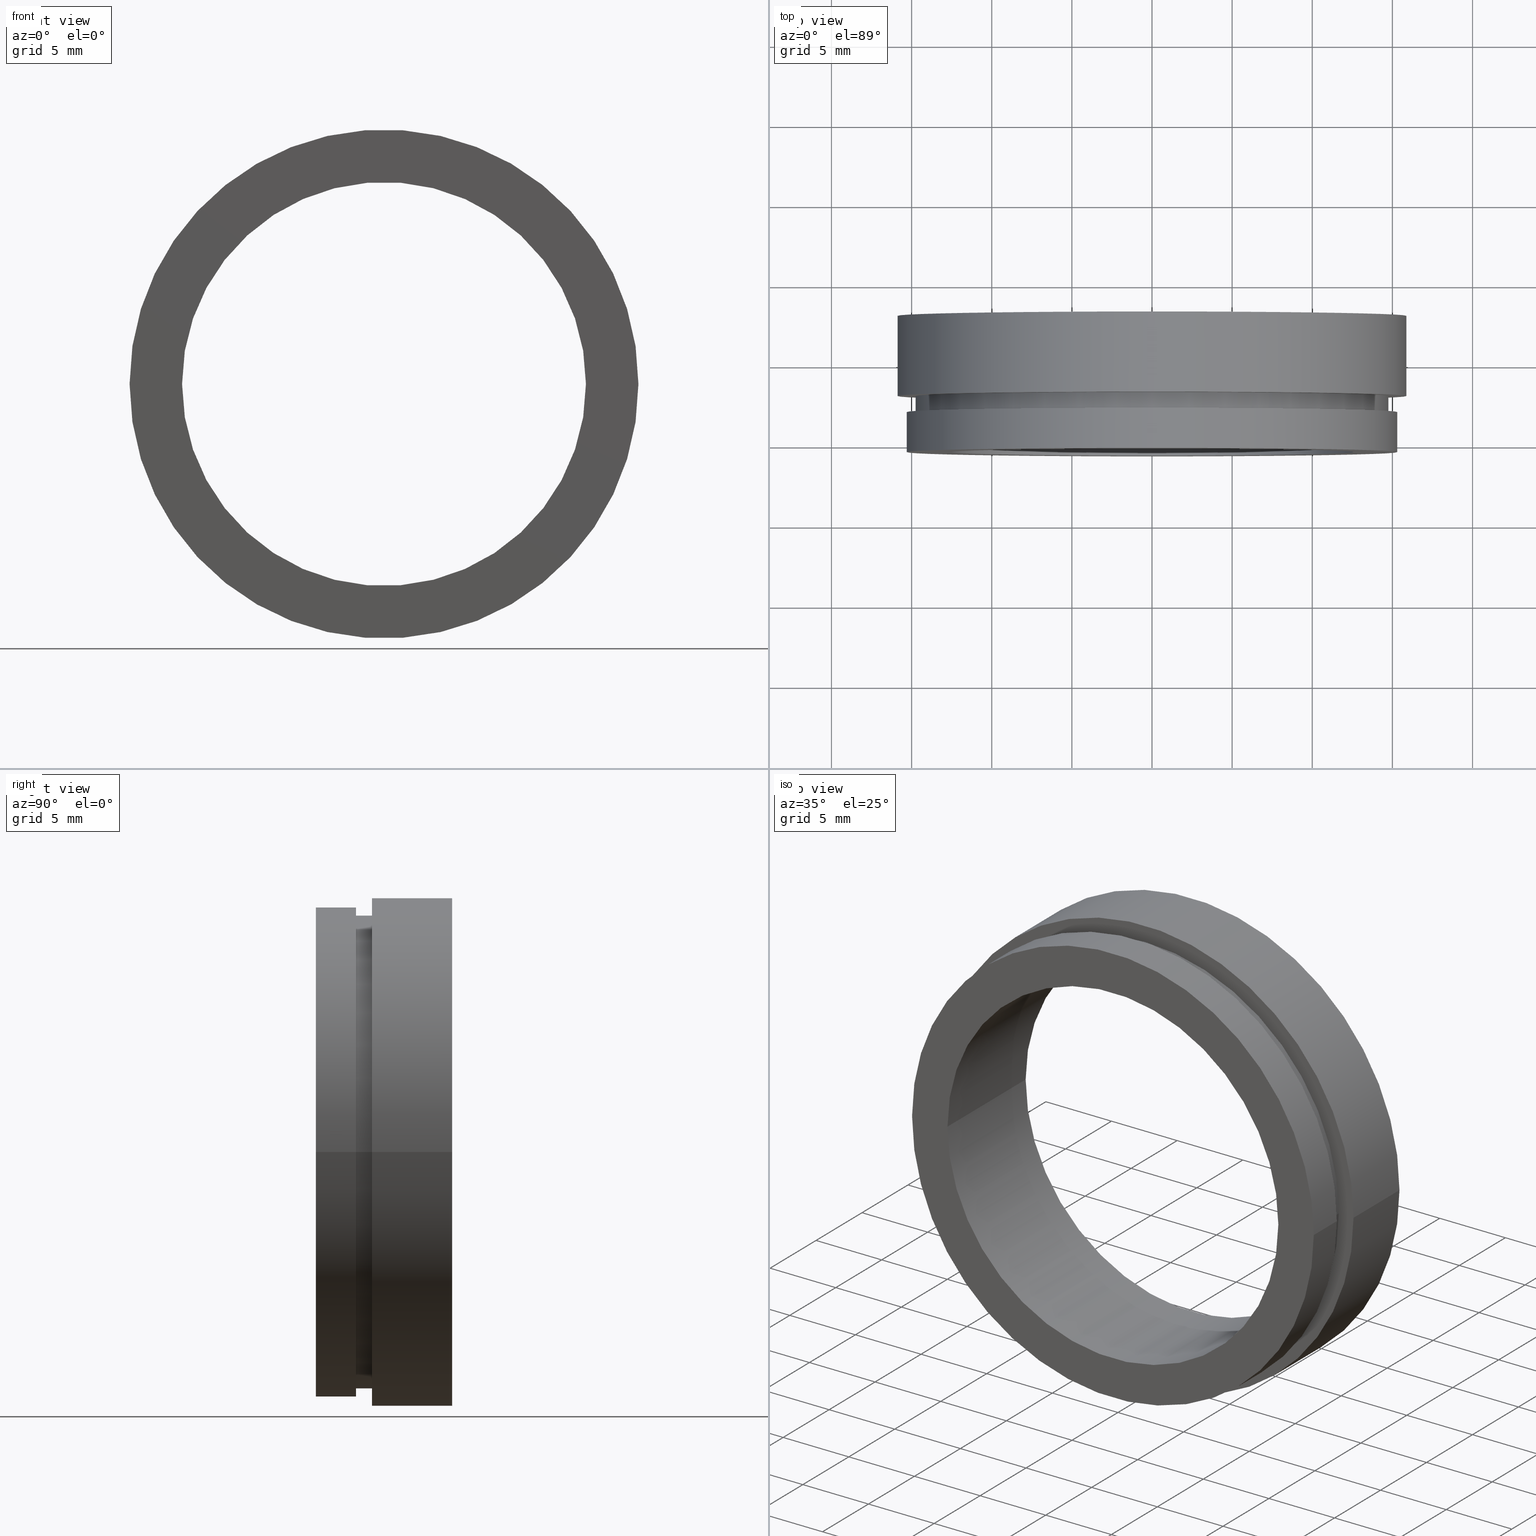
[diagram: canonical four-view strip — front | top / right | iso, engineering-drawing reading convention]
A machine part, canonical four-view strip (front | top / right | iso — engineering-drawing reading convention). The complete STEP part file that produces these views, byte-faithful:
ISO-10303-21;
HEADER;
FILE_DESCRIPTION (( 'STEP AP214' ),
    '1' );
FILE_NAME ('504104.STEP',
    '2019-10-09T01:54:45',
    ( '' ),
    ( '' ),
    'SwSTEP 2.0',
    'SolidWorks 2016',
    '' );
FILE_SCHEMA (( 'AUTOMOTIVE_DESIGN' ));
ENDSEC;

DATA;
#1 = DIRECTION ( 'NONE',  ( -1.000000000000000000, -1.092739197465705300E-016, 0.0000000000000000000 ) ) ;
#2 = CYLINDRICAL_SURFACE ( 'NONE', #11, 14.74999999999999800 ) ;
#3 = PRESENTATION_STYLE_ASSIGNMENT (( #337 ) ) ;
#4 = ORIENTED_EDGE ( 'NONE', *, *, #252, .F. ) ;
#5 = ADVANCED_BREP_SHAPE_REPRESENTATION ( '504104', ( #106, #32 ), #80 ) ;
#6 = DIRECTION ( 'NONE',  ( -1.224646799147351000E-016, 1.000000000000000000, -0.0000000000000000000 ) ) ;
#7 = CARTESIAN_POINT ( 'NONE',  ( -14.74999999999999800, 16.88601823708207300, 0.0000000000000000000 ) ) ;
#8 =( GEOMETRIC_REPRESENTATION_CONTEXT ( 3 ) GLOBAL_UNCERTAINTY_ASSIGNED_CONTEXT ( ( #52 ) ) GLOBAL_UNIT_ASSIGNED_CONTEXT ( ( #181, #10, #300 ) ) REPRESENTATION_CONTEXT ( 'NONE', 'WORKASPACE' ) );
#9 = DIRECTION ( 'NONE',  ( -1.224646799147351000E-016, 1.000000000000000000, -0.0000000000000000000 ) ) ;
#10 =( NAMED_UNIT ( * ) PLANE_ANGLE_UNIT ( ) SI_UNIT ( $, .RADIAN. ) );
#11 = AXIS2_PLACEMENT_3D ( 'NONE', #258, #124, #223 ) ;
#12 = DIRECTION ( 'NONE',  ( -1.224646799147351000E-016, 1.000000000000000000, -0.0000000000000000000 ) ) ;
#13 = DIRECTION ( 'NONE',  ( -1.000000000000000000, 0.0000000000000000000, 0.0000000000000000000 ) ) ;
#14 = FILL_AREA_STYLE_COLOUR ( '', #220 ) ;
#15 = ORIENTED_EDGE ( 'NONE', *, *, #293, .T. ) ;
#16 = COLOUR_RGB ( '',1.000000000000000000, 1.000000000000000000, 1.000000000000000000 ) ;
#17 =( NAMED_UNIT ( * ) SI_UNIT ( $, .STERADIAN. ) SOLID_ANGLE_UNIT ( ) );
#18 = DIRECTION ( 'NONE',  ( -1.000000000000000000, -1.204669080539449300E-016, 0.0000000000000000000 ) ) ;
#19 = EDGE_CURVE ( 'NONE', #242, #161, #249, .T. ) ;
#20 = DIRECTION ( 'NONE',  ( -1.224646799147351000E-016, 1.000000000000000000, -0.0000000000000000000 ) ) ;
#21 = DIRECTION ( 'NONE',  ( -1.000000000000000000, -1.224646799147351000E-016, 0.0000000000000000000 ) ) ;
#22 =( NAMED_UNIT ( * ) PLANE_ANGLE_UNIT ( ) SI_UNIT ( $, .RADIAN. ) );
#23 = CARTESIAN_POINT ( 'NONE',  ( 1.093791163676037000E-015, 7.954535588880333700, 0.0000000000000000000 ) ) ;
#24 = ORIENTED_EDGE ( 'NONE', *, *, #118, .F. ) ;
#25 = AXIS2_PLACEMENT_3D ( 'NONE', #39, #271, #67 ) ;
#26 = CIRCLE ( 'NONE', #211, 14.74999999999999800 ) ;
#27 = FACE_OUTER_BOUND ( 'NONE', #364, .T. ) ;
#28 = AXIS2_PLACEMENT_3D ( 'NONE', #64, #294, #1 ) ;
#29 = UNCERTAINTY_MEASURE_WITH_UNIT (LENGTH_MEASURE( 1.000000000000000100E-005 ), #218, 'distance_accuracy_value', 'NONE');
#30 = SURFACE_STYLE_FILL_AREA ( #75 ) ;
#31 = ORIENTED_EDGE ( 'NONE', *, *, #134, .F. ) ;
#32 = AXIS2_PLACEMENT_3D ( 'NONE', #374, #164, #308 ) ;
#33 = UNCERTAINTY_MEASURE_WITH_UNIT (LENGTH_MEASURE( 1.000000000000000100E-005 ), #43, 'distance_accuracy_value', 'NONE');
#34 =( GEOMETRIC_REPRESENTATION_CONTEXT ( 3 ) GLOBAL_UNCERTAINTY_ASSIGNED_CONTEXT ( ( #205 ) ) GLOBAL_UNIT_ASSIGNED_CONTEXT ( ( #121, #253, #351 ) ) REPRESENTATION_CONTEXT ( 'NONE', 'WORKASPACE' ) );
#35 = CARTESIAN_POINT ( 'NONE',  ( -14.74999999999999600, 2.954535588880331100, 0.0000000000000000000 ) ) ;
#36 = ORIENTED_EDGE ( 'NONE', *, *, #90, .T. ) ;
#37 = CARTESIAN_POINT ( 'NONE',  ( 15.87500000000000000, 7.954535588880335500, 1.944126793646423200E-015 ) ) ;
#38 = DIRECTION ( 'NONE',  ( -1.224646799147351000E-016, 1.000000000000000000, -0.0000000000000000000 ) ) ;
#39 = CARTESIAN_POINT ( 'NONE',  ( 1.828579243164447600E-015, 1.954535588880333700, 0.0000000000000000000 ) ) ;
#40 = LINE ( 'NONE', #310, #101 ) ;
#41 = AXIS2_PLACEMENT_3D ( 'NONE', #377, #83, #417 ) ;
#42 =( LENGTH_UNIT ( ) NAMED_UNIT ( * ) SI_UNIT ( .MILLI., .METRE. ) );
#43 =( LENGTH_UNIT ( ) NAMED_UNIT ( * ) SI_UNIT ( .MILLI., .METRE. ) );
#44 = FILL_AREA_STYLE_COLOUR ( '', #16 ) ;
#45 = LINE ( 'NONE', #110, #390 ) ;
#46 = ORIENTED_EDGE ( 'NONE', *, *, #118, .T. ) ;
#47 =( GEOMETRIC_REPRESENTATION_CONTEXT ( 3 ) GLOBAL_UNCERTAINTY_ASSIGNED_CONTEXT ( ( #233 ) ) GLOBAL_UNIT_ASSIGNED_CONTEXT ( ( #276, #312, #414 ) ) REPRESENTATION_CONTEXT ( 'NONE', 'WORKASPACE' ) );
#48 = DIRECTION ( 'NONE',  ( -1.224646799147351000E-016, 1.000000000000000000, -0.0000000000000000000 ) ) ;
#49 = DIRECTION ( 'NONE',  ( 1.000000000000000000, 1.224646799147351000E-016, 0.0000000000000000000 ) ) ;
#50 = STYLED_ITEM ( 'NONE', ( #363 ), #103 ) ;
#51 = VERTEX_POINT ( 'NONE', #172 ) ;
#52 = UNCERTAINTY_MEASURE_WITH_UNIT (LENGTH_MEASURE( 1.000000000000000100E-005 ), #181, 'distance_accuracy_value', 'NONE');
#53 = EDGE_CURVE ( 'NONE', #297, #159, #59, .T. ) ;
#54 = AXIS2_PLACEMENT_3D ( 'NONE', #331, #180, #146 ) ;
#55 = FACE_BOUND ( 'NONE', #344, .T. ) ;
#56 = EDGE_LOOP ( 'NONE', ( #208, #36 ) ) ;
#57 = LINE ( 'NONE', #307, #199 ) ;
#58 = EDGE_LOOP ( 'NONE', ( #201, #264, #89, #188 ) ) ;
#59 = CIRCLE ( 'NONE', #28, 15.87500000000000000 ) ;
#60 =( GEOMETRIC_REPRESENTATION_CONTEXT ( 3 ) GLOBAL_UNCERTAINTY_ASSIGNED_CONTEXT ( ( #388 ) ) GLOBAL_UNIT_ASSIGNED_CONTEXT ( ( #162, #22, #215 ) ) REPRESENTATION_CONTEXT ( 'NONE', 'WORKASPACE' ) );
#61 = DIRECTION ( 'NONE',  ( -1.000000000000000000, -1.176083712526648900E-016, 0.0000000000000000000 ) ) ;
#62 = EDGE_CURVE ( 'NONE', #380, #383, #418, .T. ) ;
#63 = CIRCLE ( 'NONE', #195, 14.74999999999999800 ) ;
#64 = CARTESIAN_POINT ( 'NONE',  ( 1.093791163676037000E-015, 7.954535588880333700, 0.0000000000000000000 ) ) ;
#65 = CYLINDRICAL_SURFACE ( 'NONE', #228, 15.30000000000000100 ) ;
#66 = EDGE_LOOP ( 'NONE', ( #145, #4 ) ) ;
#67 = DIRECTION ( 'NONE',  ( -1.000000000000000000, -1.133806193448893400E-016, 0.0000000000000000000 ) ) ;
#68 = CARTESIAN_POINT ( 'NONE',  ( -15.29999999999999900, -0.5454644111196703700, 0.0000000000000000000 ) ) ;
#69 = CARTESIAN_POINT ( 'NONE',  ( 2.134740942951285500E-015, -0.5454644111196684800, 0.0000000000000000000 ) ) ;
#70 = AXIS2_PLACEMENT_3D ( 'NONE', #373, #404, #13 ) ;
#71 = ORIENTED_EDGE ( 'NONE', *, *, #204, .F. ) ;
#72 = DIRECTION ( 'NONE',  ( -1.224646799147351000E-016, 1.000000000000000000, -0.0000000000000000000 ) ) ;
#73 = DIRECTION ( 'NONE',  ( -1.224646799147351000E-016, 1.000000000000000000, -0.0000000000000000000 ) ) ;
#74 = DIRECTION ( 'NONE',  ( -1.000000000000000000, -1.092739197465705500E-016, 0.0000000000000000000 ) ) ;
#75 = FILL_AREA_STYLE ('',( #214 ) ) ;
#76 = FACE_OUTER_BOUND ( 'NONE', #197, .T. ) ;
#77 = VERTEX_POINT ( 'NONE', #325 ) ;
#78 = CARTESIAN_POINT ( 'NONE',  ( 2.134740942951285100E-015, -0.5454644111196650400, 0.0000000000000000000 ) ) ;
#79 = VERTEX_POINT ( 'NONE', #362 ) ;
#80 =( GEOMETRIC_REPRESENTATION_CONTEXT ( 3 ) GLOBAL_UNCERTAINTY_ASSIGNED_CONTEXT ( ( #33 ) ) GLOBAL_UNIT_ASSIGNED_CONTEXT ( ( #43, #385, #282 ) ) REPRESENTATION_CONTEXT ( 'NONE', 'WORKASPACE' ) );
#81 = DIRECTION ( 'NONE',  ( -1.224646799147351000E-016, 1.000000000000000000, -0.0000000000000000000 ) ) ;
#82 = DIRECTION ( 'NONE',  ( 1.224646799147351000E-016, -1.000000000000000000, 0.0000000000000000000 ) ) ;
#83 = DIRECTION ( 'NONE',  ( -1.224646799147351000E-016, 1.000000000000000000, -0.0000000000000000000 ) ) ;
#84 = DIRECTION ( 'NONE',  ( -1.224646799147351000E-016, 1.000000000000000000, -0.0000000000000000000 ) ) ;
#85 = FILL_AREA_STYLE ('',( #14 ) ) ;
#86 = PRESENTATION_STYLE_ASSIGNMENT (( #155 ) ) ;
#87 = CIRCLE ( 'NONE', #140, 15.87499999999999600 ) ;
#88 = DIRECTION ( 'NONE',  ( -1.000000000000000000, -1.092739197465705300E-016, 0.0000000000000000000 ) ) ;
#89 = ORIENTED_EDGE ( 'NONE', *, *, #93, .T. ) ;
#90 = EDGE_CURVE ( 'NONE', #161, #242, #222, .T. ) ;
#91 = COLOUR_RGB ( '',1.000000000000000000, 1.000000000000000000, 1.000000000000000000 ) ;
#92 = VERTEX_POINT ( 'NONE', #176 ) ;
#93 = EDGE_CURVE ( 'NONE', #178, #242, #328, .T. ) ;
#94 = PRESENTATION_LAYER_ASSIGNMENT (  '', '', ( #50 ) ) ;
#95 = FACE_OUTER_BOUND ( 'NONE', #108, .T. ) ;
#96 = ORIENTED_EDGE ( 'NONE', *, *, #128, .F. ) ;
#97 = AXIS2_PLACEMENT_3D ( 'NONE', #275, #336, #183 ) ;
#98 = EDGE_CURVE ( 'NONE', #194, #79, #177, .T. ) ;
#99 = FACE_OUTER_BOUND ( 'NONE', #132, .T. ) ;
#100 = ORIENTED_EDGE ( 'NONE', *, *, #93, .F. ) ;
#101 = VECTOR ( 'NONE', #274, 1000.000000000000000 ) ;
#102 = ORIENTED_EDGE ( 'NONE', *, *, #279, .F. ) ;
#103 = ADVANCED_FACE ( 'NONE', ( #381 ), #65, .T. ) ;
#104 = AXIS2_PLACEMENT_3D ( 'NONE', #341, #20, #379 ) ;
#105 = PLANE ( 'NONE',  #198 ) ;
#106 = MANIFOLD_SOLID_BREP ( '��ת1', #429 ) ;
#107 = DIRECTION ( 'NONE',  ( -1.224646799147351000E-016, 1.000000000000000000, -0.0000000000000000000 ) ) ;
#108 = EDGE_LOOP ( 'NONE', ( #227, #327 ) ) ;
#109 = SURFACE_SIDE_STYLE ('',( #266 ) ) ;
#110 = CARTESIAN_POINT ( 'NONE',  ( 15.87500000000000000, 16.88601823708208000, 1.944126793646423200E-015 ) ) ;
#111 = DIRECTION ( 'NONE',  ( -1.000000000000000000, -1.092739197465705500E-016, 0.0000000000000000000 ) ) ;
#112 = CYLINDRICAL_SURFACE ( 'NONE', #104, 15.30000000000000100 ) ;
#113 = VECTOR ( 'NONE', #48, 1000.000000000000000 ) ;
#114 = ORIENTED_EDGE ( 'NONE', *, *, #204, .T. ) ;
#115 = DIRECTION ( 'NONE',  ( -1.000000000000000000, -2.185478394931410600E-016, 0.0000000000000000000 ) ) ;
#116 = CARTESIAN_POINT ( 'NONE',  ( -15.87500000000000000, 7.954535588880332000, 0.0000000000000000000 ) ) ;
#117 = FILL_AREA_STYLE_COLOUR ( '', #150 ) ;
#118 = EDGE_CURVE ( 'NONE', #79, #194, #87, .T. ) ;
#119 = SURFACE_SIDE_STYLE ('',( #126 ) ) ;
#120 = PLANE ( 'NONE',  #97 ) ;
#121 =( LENGTH_UNIT ( ) NAMED_UNIT ( * ) SI_UNIT ( .MILLI., .METRE. ) );
#122 = EDGE_LOOP ( 'NONE', ( #322, #305 ) ) ;
#123 = CARTESIAN_POINT ( 'NONE',  ( 0.0000000000000000000, 16.88601823708207700, 0.0000000000000000000 ) ) ;
#124 = DIRECTION ( 'NONE',  ( -1.224646799147351000E-016, 1.000000000000000000, -0.0000000000000000000 ) ) ;
#125 = PRESENTATION_LAYER_ASSIGNMENT (  '', '', ( #243 ) ) ;
#126 = SURFACE_STYLE_FILL_AREA ( #411 ) ;
#127 = ORIENTED_EDGE ( 'NONE', *, *, #279, .T. ) ;
#128 = EDGE_CURVE ( 'NONE', #380, #167, #40, .T. ) ;
#129 = PRODUCT ( '504104', '504104', '', ( #221 ) ) ;
#130 = AXIS2_PLACEMENT_3D ( 'NONE', #303, #12, #115 ) ;
#131 = PRESENTATION_STYLE_ASSIGNMENT (( #423 ) ) ;
#132 = EDGE_LOOP ( 'NONE', ( #267, #299, #114, #255 ) ) ;
#133 = ORIENTED_EDGE ( 'NONE', *, *, #330, .T. ) ;
#134 = EDGE_CURVE ( 'NONE', #383, #51, #57, .T. ) ;
#135 = ADVANCED_FACE ( 'NONE', ( #207 ), #202, .F. ) ;
#136 = UNCERTAINTY_MEASURE_WITH_UNIT (LENGTH_MEASURE( 1.000000000000000100E-005 ), #42, 'distance_accuracy_value', 'NONE');
#137 = ORIENTED_EDGE ( 'NONE', *, *, #413, .T. ) ;
#138 = ADVANCED_FACE ( 'NONE', ( #27 ), #277, .T. ) ;
#139 = CARTESIAN_POINT ( 'NONE',  ( 2.134740942951285500E-015, -0.5454644111196684800, 0.0000000000000000000 ) ) ;
#140 = AXIS2_PLACEMENT_3D ( 'NONE', #368, #148, #74 ) ;
#141 = EDGE_CURVE ( 'NONE', #213, #400, #358, .T. ) ;
#142 = FACE_OUTER_BOUND ( 'NONE', #287, .T. ) ;
#143 = ORIENTED_EDGE ( 'NONE', *, *, #191, .F. ) ;
#144 = ADVANCED_FACE ( 'NONE', ( #95, #372 ), #422, .F. ) ;
#145 = ORIENTED_EDGE ( 'NONE', *, *, #293, .F. ) ;
#146 = DIRECTION ( 'NONE',  ( -1.000000000000000000, -2.185478394931410600E-016, 0.0000000000000000000 ) ) ;
#147 = DIRECTION ( 'NONE',  ( -1.000000000000000000, -1.204669080539449300E-016, 0.0000000000000000000 ) ) ;
#148 = DIRECTION ( 'NONE',  ( -1.224646799147351000E-016, 1.000000000000000000, -0.0000000000000000000 ) ) ;
#149 = MECHANICAL_DESIGN_GEOMETRIC_PRESENTATION_REPRESENTATION (  '', ( #243 ), #8 ) ;
#150 = COLOUR_RGB ( '',1.000000000000000000, 1.000000000000000000, 1.000000000000000000 ) ;
#151 = CARTESIAN_POINT ( 'NONE',  ( 1.828579243164447600E-015, 1.954535588880333700, 0.0000000000000000000 ) ) ;
#152 =( NAMED_UNIT ( * ) PLANE_ANGLE_UNIT ( ) SI_UNIT ( $, .RADIAN. ) );
#153 = SURFACE_SIDE_STYLE ('',( #286 ) ) ;
#154 = DIRECTION ( 'NONE',  ( -1.224646799147351000E-016, 1.000000000000000000, -0.0000000000000000000 ) ) ;
#155 = SURFACE_STYLE_USAGE ( .BOTH. , #119 ) ;
#156 = SURFACE_SIDE_STYLE ('',( #399 ) ) ;
#157 = APPLICATION_PROTOCOL_DEFINITION ( 'draft international standard', 'automotive_design', 1998, #347 ) ;
#158 = LINE ( 'NONE', #315, #175 ) ;
#159 = VERTEX_POINT ( 'NONE', #116 ) ;
#160 = PRESENTATION_STYLE_ASSIGNMENT (( #376 ) ) ;
#161 = VERTEX_POINT ( 'NONE', #163 ) ;
#162 =( LENGTH_UNIT ( ) NAMED_UNIT ( * ) SI_UNIT ( .MILLI., .METRE. ) );
#163 = CARTESIAN_POINT ( 'NONE',  ( 14.75000000000000000, 2.954535588880334600, 1.806354028742345800E-015 ) ) ;
#164 = DIRECTION ( 'NONE',  ( 0.0000000000000000000, 0.0000000000000000000, 1.000000000000000000 ) ) ;
#165 = AXIS2_PLACEMENT_3D ( 'NONE', #78, #349, #18 ) ;
#166 = PRESENTATION_STYLE_ASSIGNMENT (( #402 ) ) ;
#167 = VERTEX_POINT ( 'NONE', #225 ) ;
#168 = EDGE_CURVE ( 'NONE', #77, #400, #234, .T. ) ;
#169 = ORIENTED_EDGE ( 'NONE', *, *, #257, .T. ) ;
#170 = ORIENTED_EDGE ( 'NONE', *, *, #168, .F. ) ;
#171 = AXIS2_PLACEMENT_3D ( 'NONE', #210, #6, #246 ) ;
#172 = CARTESIAN_POINT ( 'NONE',  ( 15.30000000000000200, 1.954535588880335500, 1.873709602695450400E-015 ) ) ;
#173 = PRODUCT_DEFINITION ( 'δ֪', '', #333, #389 ) ;
#174 = ADVANCED_FACE ( 'NONE', ( #371 ), #2, .T. ) ;
#175 = VECTOR ( 'NONE', #84, 1000.000000000000000 ) ;
#176 = CARTESIAN_POINT ( 'NONE',  ( 12.60000000000000300, -0.5454644111196635900, 1.543054966925665300E-015 ) ) ;
#177 = CIRCLE ( 'NONE', #319, 15.87499999999999600 ) ;
#178 = VERTEX_POINT ( 'NONE', #318 ) ;
#179 = ADVANCED_FACE ( 'NONE', ( #386, #196 ), #283, .F. ) ;
#180 = DIRECTION ( 'NONE',  ( -1.224646799147351000E-016, 1.000000000000000000, -0.0000000000000000000 ) ) ;
#181 =( LENGTH_UNIT ( ) NAMED_UNIT ( * ) SI_UNIT ( .MILLI., .METRE. ) );
#182 = EDGE_LOOP ( 'NONE', ( #15, #137, #236, #100 ) ) ;
#183 = DIRECTION ( 'NONE',  ( -1.000000000000000000, -1.224646799147351000E-016, 0.0000000000000000000 ) ) ;
#184 = DIRECTION ( 'NONE',  ( -1.224646799147351000E-016, 1.000000000000000000, -0.0000000000000000000 ) ) ;
#185 = STYLED_ITEM ( 'NONE', ( #3 ), #106 ) ;
#186 =( NAMED_UNIT ( * ) PLANE_ANGLE_UNIT ( ) SI_UNIT ( $, .RADIAN. ) );
#187 = LINE ( 'NONE', #352, #343 ) ;
#188 = ORIENTED_EDGE ( 'NONE', *, *, #90, .F. ) ;
#189 = APPLICATION_CONTEXT ( 'automotive_design' ) ;
#190 = CARTESIAN_POINT ( 'NONE',  ( 14.75000000000000000, 1.954535588880335500, 1.806354028742345800E-015 ) ) ;
#191 = EDGE_CURVE ( 'NONE', #159, #297, #361, .T. ) ;
#192 = DIRECTION ( 'NONE',  ( -1.224646799147351000E-016, 1.000000000000000000, -0.0000000000000000000 ) ) ;
#193 = DIRECTION ( 'NONE',  ( -1.000000000000000000, -1.376764663473656200E-016, 0.0000000000000000000 ) ) ;
#194 = VERTEX_POINT ( 'NONE', #354 ) ;
#195 = AXIS2_PLACEMENT_3D ( 'NONE', #403, #38, #369 ) ;
#196 = FACE_OUTER_BOUND ( 'NONE', #346, .T. ) ;
#197 = EDGE_LOOP ( 'NONE', ( #24, #406 ) ) ;
#198 = AXIS2_PLACEMENT_3D ( 'NONE', #304, #365, #420 ) ;
#199 = VECTOR ( 'NONE', #154, 1000.000000000000000 ) ;
#200 = ORIENTED_EDGE ( 'NONE', *, *, #224, .F. ) ;
#201 = ORIENTED_EDGE ( 'NONE', *, *, #413, .F. ) ;
#202 = CYLINDRICAL_SURFACE ( 'NONE', #70, 12.60000000000000100 ) ;
#203 = MECHANICAL_DESIGN_GEOMETRIC_PRESENTATION_REPRESENTATION (  '', ( #185 ), #47 ) ;
#204 = EDGE_CURVE ( 'NONE', #79, #159, #158, .T. ) ;
#205 = UNCERTAINTY_MEASURE_WITH_UNIT (LENGTH_MEASURE( 1.000000000000000100E-005 ), #121, 'distance_accuracy_value', 'NONE');
#206 = DIRECTION ( 'NONE',  ( -1.000000000000000000, -1.133806193448893400E-016, 0.0000000000000000000 ) ) ;
#207 = FACE_OUTER_BOUND ( 'NONE', #329, .T. ) ;
#208 = ORIENTED_EDGE ( 'NONE', *, *, #19, .T. ) ;
#209 = CARTESIAN_POINT ( 'NONE',  ( 1.706114563249712500E-015, 2.954535588880332900, 0.0000000000000000000 ) ) ;
#210 = CARTESIAN_POINT ( 'NONE',  ( 0.0000000000000000000, 16.88601823708207700, 0.0000000000000000000 ) ) ;
#211 = AXIS2_PLACEMENT_3D ( 'NONE', #151, #184, #244 ) ;
#212 = CIRCLE ( 'NONE', #41, 12.60000000000000100 ) ;
#213 = VERTEX_POINT ( 'NONE', #378 ) ;
#214 = FILL_AREA_STYLE_COLOUR ( '', #231 ) ;
#215 =( NAMED_UNIT ( * ) SI_UNIT ( $, .STERADIAN. ) SOLID_ANGLE_UNIT ( ) );
#216 = FILL_AREA_STYLE_COLOUR ( '', #298 ) ;
#217 = DIRECTION ( 'NONE',  ( -1.224646799147351000E-016, 1.000000000000000000, -0.0000000000000000000 ) ) ;
#218 =( LENGTH_UNIT ( ) NAMED_UNIT ( * ) SI_UNIT ( .MILLI., .METRE. ) );
#219 = CARTESIAN_POINT ( 'NONE',  ( 12.60000000000000300, -0.5454644111196645900, 0.0000000000000000000 ) ) ;
#220 = COLOUR_RGB ( '',1.000000000000000000, 1.000000000000000000, 1.000000000000000000 ) ;
#221 = PRODUCT_CONTEXT ( 'NONE', #189, 'mechanical' ) ;
#222 = CIRCLE ( 'NONE', #273, 14.74999999999999800 ) ;
#223 = DIRECTION ( 'NONE',  ( -1.000000000000000000, -2.352167425053297900E-016, 0.0000000000000000000 ) ) ;
#224 = EDGE_CURVE ( 'NONE', #92, #213, #187, .T. ) ;
#225 = CARTESIAN_POINT ( 'NONE',  ( -15.29999999999999900, 1.954535588880332000, 0.0000000000000000000 ) ) ;
#226 = CYLINDRICAL_SURFACE ( 'NONE', #171, 12.60000000000000100 ) ;
#227 = ORIENTED_EDGE ( 'NONE', *, *, #62, .F. ) ;
#228 = AXIS2_PLACEMENT_3D ( 'NONE', #345, #81, #370 ) ;
#229 = EDGE_CURVE ( 'NONE', #167, #51, #263, .T. ) ;
#230 = VECTOR ( 'NONE', #256, 1000.000000000000000 ) ;
#231 = COLOUR_RGB ( '',1.000000000000000000, 1.000000000000000000, 1.000000000000000000 ) ;
#232 = ORIENTED_EDGE ( 'NONE', *, *, #224, .T. ) ;
#233 = UNCERTAINTY_MEASURE_WITH_UNIT (LENGTH_MEASURE( 1.000000000000000100E-005 ), #276, 'distance_accuracy_value', 'NONE');
#234 = LINE ( 'NONE', #285, #113 ) ;
#235 = PRESENTATION_LAYER_ASSIGNMENT (  '', '', ( #288 ) ) ;
#236 = ORIENTED_EDGE ( 'NONE', *, *, #19, .F. ) ;
#237 = ADVANCED_FACE ( 'NONE', ( #76, #427 ), #120, .F. ) ;
#238 = ADVANCED_FACE ( 'NONE', ( #248 ), #226, .F. ) ;
#239 = ADVANCED_FACE ( 'NONE', ( #99 ), #254, .T. ) ;
#240 = FACE_OUTER_BOUND ( 'NONE', #122, .T. ) ;
#241 = ORIENTED_EDGE ( 'NONE', *, *, #134, .T. ) ;
#242 = VERTEX_POINT ( 'NONE', #35 ) ;
#243 = STYLED_ITEM ( 'NONE', ( #166 ), #238 ) ;
#244 = DIRECTION ( 'NONE',  ( -1.000000000000000000, -1.176083712526648900E-016, 0.0000000000000000000 ) ) ;
#245 = DIRECTION ( 'NONE',  ( -1.224646799147351000E-016, 1.000000000000000000, -0.0000000000000000000 ) ) ;
#246 = DIRECTION ( 'NONE',  ( -1.000000000000000000, 0.0000000000000000000, 0.0000000000000000000 ) ) ;
#247 = DIRECTION ( 'NONE',  ( -1.224646799147351000E-016, 1.000000000000000000, -0.0000000000000000000 ) ) ;
#248 = FACE_OUTER_BOUND ( 'NONE', #426, .T. ) ;
#249 = CIRCLE ( 'NONE', #409, 14.74999999999999800 ) ;
#250 = CARTESIAN_POINT ( 'NONE',  ( 1.828579243164447600E-015, 1.954535588880333700, 0.0000000000000000000 ) ) ;
#251 = SURFACE_SIDE_STYLE ('',( #30 ) ) ;
#252 = EDGE_CURVE ( 'NONE', #430, #178, #63, .T. ) ;
#253 =( NAMED_UNIT ( * ) PLANE_ANGLE_UNIT ( ) SI_UNIT ( $, .RADIAN. ) );
#254 = CYLINDRICAL_SURFACE ( 'NONE', #54, 15.87500000000000000 ) ;
#255 = ORIENTED_EDGE ( 'NONE', *, *, #53, .F. ) ;
#256 = DIRECTION ( 'NONE',  ( -1.224646799147351000E-016, 1.000000000000000000, -0.0000000000000000000 ) ) ;
#257 = EDGE_CURVE ( 'NONE', #383, #380, #313, .T. ) ;
#258 = CARTESIAN_POINT ( 'NONE',  ( 0.0000000000000000000, 16.88601823708207700, 0.0000000000000000000 ) ) ;
#259 = PRODUCT_RELATED_PRODUCT_CATEGORY ( 'part', '', ( #129 ) ) ;
#260 = FILL_AREA_STYLE_COLOUR ( '', #91 ) ;
#261 = ORIENTED_EDGE ( 'NONE', *, *, #128, .T. ) ;
#262 = MECHANICAL_DESIGN_GEOMETRIC_PRESENTATION_REPRESENTATION (  '', ( #375 ), #421 ) ;
#263 = CIRCLE ( 'NONE', #25, 15.30000000000000100 ) ;
#264 = ORIENTED_EDGE ( 'NONE', *, *, #252, .T. ) ;
#265 = STYLED_ITEM ( 'NONE', ( #86 ), #5 ) ;
#266 = SURFACE_STYLE_FILL_AREA ( #339 ) ;
#267 = ORIENTED_EDGE ( 'NONE', *, *, #342, .F. ) ;
#268 = FACE_OUTER_BOUND ( 'NONE', #182, .T. ) ;
#269 = AXIS2_PLACEMENT_3D ( 'NONE', #250, #367, #206 ) ;
#270 = VECTOR ( 'NONE', #73, 1000.000000000000000 ) ;
#271 = DIRECTION ( 'NONE',  ( -1.224646799147351000E-016, 1.000000000000000000, -0.0000000000000000000 ) ) ;
#272 = EDGE_LOOP ( 'NONE', ( #133, #289 ) ) ;
#273 = AXIS2_PLACEMENT_3D ( 'NONE', #332, #9, #281 ) ;
#274 = DIRECTION ( 'NONE',  ( -1.224646799147351000E-016, 1.000000000000000000, -0.0000000000000000000 ) ) ;
#275 = CARTESIAN_POINT ( 'NONE',  ( 14.75000000000000000, 2.954535588880335500, 0.0000000000000000000 ) ) ;
#276 =( LENGTH_UNIT ( ) NAMED_UNIT ( * ) SI_UNIT ( .MILLI., .METRE. ) );
#277 = CYLINDRICAL_SURFACE ( 'NONE', #130, 15.87500000000000000 ) ;
#278 = CARTESIAN_POINT ( 'NONE',  ( -12.60000000000000000, 7.954535588880332000, 0.0000000000000000000 ) ) ;
#279 = EDGE_CURVE ( 'NONE', #51, #167, #415, .T. ) ;
#280 = SURFACE_STYLE_USAGE ( .BOTH. , #109 ) ;
#281 = DIRECTION ( 'NONE',  ( -1.000000000000000000, -1.176083712526648900E-016, 0.0000000000000000000 ) ) ;
#282 =( NAMED_UNIT ( * ) SI_UNIT ( $, .STERADIAN. ) SOLID_ANGLE_UNIT ( ) );
#283 = PLANE ( 'NONE',  #387 ) ;
#284 = ORIENTED_EDGE ( 'NONE', *, *, #62, .T. ) ;
#285 = CARTESIAN_POINT ( 'NONE',  ( -12.60000000000000100, 16.88601823708207700, 0.0000000000000000000 ) ) ;
#286 = SURFACE_STYLE_FILL_AREA ( #340 ) ;
#287 = EDGE_LOOP ( 'NONE', ( #31, #169, #261, #102 ) ) ;
#288 = STYLED_ITEM ( 'NONE', ( #131 ), #432 ) ;
#289 = ORIENTED_EDGE ( 'NONE', *, *, #431, .T. ) ;
#290 = MECHANICAL_DESIGN_GEOMETRIC_PRESENTATION_REPRESENTATION (  '', ( #288 ), #34 ) ;
#291 = CYLINDRICAL_SURFACE ( 'NONE', #323, 14.74999999999999800 ) ;
#292 = ORIENTED_EDGE ( 'NONE', *, *, #141, .T. ) ;
#293 = EDGE_CURVE ( 'NONE', #178, #430, #26, .T. ) ;
#294 = DIRECTION ( 'NONE',  ( -1.224646799147351000E-016, 1.000000000000000000, -0.0000000000000000000 ) ) ;
#295 = CIRCLE ( 'NONE', #165, 12.60000000000000100 ) ;
#296 =( GEOMETRIC_REPRESENTATION_CONTEXT ( 3 ) GLOBAL_UNCERTAINTY_ASSIGNED_CONTEXT ( ( #136 ) ) GLOBAL_UNIT_ASSIGNED_CONTEXT ( ( #42, #152, #407 ) ) REPRESENTATION_CONTEXT ( 'NONE', 'WORKASPACE' ) );
#297 = VERTEX_POINT ( 'NONE', #37 ) ;
#298 = COLOUR_RGB ( '',1.000000000000000000, 1.000000000000000000, 1.000000000000000000 ) ;
#299 = ORIENTED_EDGE ( 'NONE', *, *, #98, .T. ) ;
#300 =( NAMED_UNIT ( * ) SI_UNIT ( $, .STERADIAN. ) SOLID_ANGLE_UNIT ( ) );
#301 = CARTESIAN_POINT ( 'NONE',  ( 2.134740942951285100E-015, -0.5454644111196650400, 0.0000000000000000000 ) ) ;
#302 = DIRECTION ( 'NONE',  ( -1.000000000000000000, -1.204669080539449300E-016, 0.0000000000000000000 ) ) ;
#303 = CARTESIAN_POINT ( 'NONE',  ( 0.0000000000000000000, 16.88601823708207700, 0.0000000000000000000 ) ) ;
#304 = CARTESIAN_POINT ( 'NONE',  ( 12.60000000000000300, 7.954535588880335500, 0.0000000000000000000 ) ) ;
#305 = ORIENTED_EDGE ( 'NONE', *, *, #53, .T. ) ;
#306 = DIRECTION ( 'NONE',  ( -1.224646799147351000E-016, 1.000000000000000000, -0.0000000000000000000 ) ) ;
#307 = CARTESIAN_POINT ( 'NONE',  ( 15.30000000000000100, 16.88601823708208000, 1.873709602695450400E-015 ) ) ;
#308 = DIRECTION ( 'NONE',  ( 1.000000000000000000, 0.0000000000000000000, 0.0000000000000000000 ) ) ;
#309 = AXIS2_PLACEMENT_3D ( 'NONE', #419, #382, #193 ) ;
#310 = CARTESIAN_POINT ( 'NONE',  ( -15.30000000000000100, 16.88601823708207300, 0.0000000000000000000 ) ) ;
#311 = APPLICATION_PROTOCOL_DEFINITION ( 'draft international standard', 'automotive_design', 1998, #189 ) ;
#312 =( NAMED_UNIT ( * ) PLANE_ANGLE_UNIT ( ) SI_UNIT ( $, .RADIAN. ) );
#313 = CIRCLE ( 'NONE', #425, 15.30000000000000100 ) ;
#314 = EDGE_LOOP ( 'NONE', ( #284, #241, #416, #96 ) ) ;
#315 = CARTESIAN_POINT ( 'NONE',  ( -15.87500000000000000, 16.88601823708207300, 0.0000000000000000000 ) ) ;
#316 = SURFACE_SIDE_STYLE ('',( #334 ) ) ;
#317 = DIRECTION ( 'NONE',  ( -1.224646799147351000E-016, 1.000000000000000000, 0.0000000000000000000 ) ) ;
#318 = CARTESIAN_POINT ( 'NONE',  ( -14.74999999999999600, 1.954535588880332000, 0.0000000000000000000 ) ) ;
#319 = AXIS2_PLACEMENT_3D ( 'NONE', #410, #247, #111 ) ;
#320 = CIRCLE ( 'NONE', #428, 12.60000000000000100 ) ;
#321 = ORIENTED_EDGE ( 'NONE', *, *, #401, .F. ) ;
#322 = ORIENTED_EDGE ( 'NONE', *, *, #191, .T. ) ;
#323 = AXIS2_PLACEMENT_3D ( 'NONE', #123, #217, #353 ) ;
#324 = ORIENTED_EDGE ( 'NONE', *, *, #229, .T. ) ;
#325 = CARTESIAN_POINT ( 'NONE',  ( -12.60000000000000000, -0.5454644111196665900, 0.0000000000000000000 ) ) ;
#326 = PRESENTATION_LAYER_ASSIGNMENT (  '', '', ( #185 ) ) ;
#327 = ORIENTED_EDGE ( 'NONE', *, *, #257, .F. ) ;
#328 = LINE ( 'NONE', #7, #270 ) ;
#329 = EDGE_LOOP ( 'NONE', ( #200, #359, #335, #398 ) ) ;
#330 = EDGE_CURVE ( 'NONE', #77, #92, #320, .T. ) ;
#331 = CARTESIAN_POINT ( 'NONE',  ( 0.0000000000000000000, 16.88601823708207700, 0.0000000000000000000 ) ) ;
#332 = CARTESIAN_POINT ( 'NONE',  ( 1.706114563249712500E-015, 2.954535588880332900, 0.0000000000000000000 ) ) ;
#333 = PRODUCT_DEFINITION_FORMATION_WITH_SPECIFIED_SOURCE ( '�κ�', '', #129, .NOT_KNOWN. ) ;
#334 = SURFACE_STYLE_FILL_AREA ( #85 ) ;
#335 = ORIENTED_EDGE ( 'NONE', *, *, #168, .T. ) ;
#336 = DIRECTION ( 'NONE',  ( -1.224646799147351000E-016, 1.000000000000000000, 0.0000000000000000000 ) ) ;
#337 = SURFACE_STYLE_USAGE ( .BOTH. , #251 ) ;
#338 = MECHANICAL_DESIGN_GEOMETRIC_PRESENTATION_REPRESENTATION (  '', ( #50 ), #296 ) ;
#339 = FILL_AREA_STYLE ('',( #44 ) ) ;
#340 = FILL_AREA_STYLE ('',( #260 ) ) ;
#341 = CARTESIAN_POINT ( 'NONE',  ( 0.0000000000000000000, 16.88601823708207700, 0.0000000000000000000 ) ) ;
#342 = EDGE_CURVE ( 'NONE', #194, #297, #45, .T. ) ;
#343 = VECTOR ( 'NONE', #192, 1000.000000000000000 ) ;
#344 = EDGE_LOOP ( 'NONE', ( #321, #392 ) ) ;
#345 = CARTESIAN_POINT ( 'NONE',  ( 0.0000000000000000000, 16.88601823708207700, 0.0000000000000000000 ) ) ;
#346 = EDGE_LOOP ( 'NONE', ( #324, #127 ) ) ;
#347 = APPLICATION_CONTEXT ( 'automotive_design' ) ;
#348 = DIRECTION ( 'NONE',  ( -1.224646799147351000E-016, 1.000000000000000000, -0.0000000000000000000 ) ) ;
#349 = DIRECTION ( 'NONE',  ( -1.224646799147351000E-016, 1.000000000000000000, -0.0000000000000000000 ) ) ;
#350 = PRESENTATION_LAYER_ASSIGNMENT (  '', '', ( #265 ) ) ;
#351 =( NAMED_UNIT ( * ) SI_UNIT ( $, .STERADIAN. ) SOLID_ANGLE_UNIT ( ) );
#352 = CARTESIAN_POINT ( 'NONE',  ( 12.60000000000000100, 16.88601823708207700, 1.543054966925665300E-015 ) ) ;
#353 = DIRECTION ( 'NONE',  ( -1.000000000000000000, -2.352167425053297900E-016, 0.0000000000000000000 ) ) ;
#354 = CARTESIAN_POINT ( 'NONE',  ( 15.87499999999999600, 2.954535588880334600, 1.944126793646422800E-015 ) ) ;
#355 = PRESENTATION_LAYER_ASSIGNMENT (  '', '', ( #375 ) ) ;
#356 = PRODUCT_DEFINITION_SHAPE ( 'NONE', 'NONE',  #173 ) ;
#357 = ADVANCED_FACE ( 'NONE', ( #55, #240 ), #105, .F. ) ;
#358 = CIRCLE ( 'NONE', #309, 12.60000000000000100 ) ;
#359 = ORIENTED_EDGE ( 'NONE', *, *, #330, .F. ) ;
#360 = MECHANICAL_DESIGN_GEOMETRIC_PRESENTATION_REPRESENTATION (  '', ( #265 ), #60 ) ;
#361 = CIRCLE ( 'NONE', #394, 15.87500000000000000 ) ;
#362 = CARTESIAN_POINT ( 'NONE',  ( -15.87499999999999600, 2.954535588880331100, 0.0000000000000000000 ) ) ;
#363 = PRESENTATION_STYLE_ASSIGNMENT (( #280 ) ) ;
#364 = EDGE_LOOP ( 'NONE', ( #46, #391, #143, #71 ) ) ;
#365 = DIRECTION ( 'NONE',  ( 1.224646799147351000E-016, -1.000000000000000000, 0.0000000000000000000 ) ) ;
#366 = FILL_AREA_STYLE ('',( #216 ) ) ;
#367 = DIRECTION ( 'NONE',  ( -1.224646799147351000E-016, 1.000000000000000000, -0.0000000000000000000 ) ) ;
#368 = CARTESIAN_POINT ( 'NONE',  ( 1.706114563249712500E-015, 2.954535588880332900, 0.0000000000000000000 ) ) ;
#369 = DIRECTION ( 'NONE',  ( -1.000000000000000000, -1.176083712526648900E-016, 0.0000000000000000000 ) ) ;
#370 = DIRECTION ( 'NONE',  ( -1.000000000000000000, -2.267612386897786900E-016, 0.0000000000000000000 ) ) ;
#371 = FACE_OUTER_BOUND ( 'NONE', #58, .T. ) ;
#372 = FACE_BOUND ( 'NONE', #272, .T. ) ;
#373 = CARTESIAN_POINT ( 'NONE',  ( 0.0000000000000000000, 16.88601823708207700, 0.0000000000000000000 ) ) ;
#374 = CARTESIAN_POINT ( 'NONE',  ( 0.0000000000000000000, 0.0000000000000000000, 0.0000000000000000000 ) ) ;
#375 = STYLED_ITEM ( 'NONE', ( #160 ), #135 ) ;
#376 = SURFACE_STYLE_USAGE ( .BOTH. , #156 ) ;
#377 = CARTESIAN_POINT ( 'NONE',  ( 1.093791163676037000E-015, 7.954535588880333700, 0.0000000000000000000 ) ) ;
#378 = CARTESIAN_POINT ( 'NONE',  ( 12.60000000000000300, 7.954535588880335500, 1.543054966925665300E-015 ) ) ;
#379 = DIRECTION ( 'NONE',  ( -1.000000000000000000, -2.267612386897786900E-016, 0.0000000000000000000 ) ) ;
#380 = VERTEX_POINT ( 'NONE', #68 ) ;
#381 = FACE_OUTER_BOUND ( 'NONE', #314, .T. ) ;
#382 = DIRECTION ( 'NONE',  ( -1.224646799147351000E-016, 1.000000000000000000, -0.0000000000000000000 ) ) ;
#383 = VERTEX_POINT ( 'NONE', #384 ) ;
#384 = CARTESIAN_POINT ( 'NONE',  ( 15.30000000000000200, -0.5454644111196667000, 1.873709602695450400E-015 ) ) ;
#385 =( NAMED_UNIT ( * ) PLANE_ANGLE_UNIT ( ) SI_UNIT ( $, .RADIAN. ) );
#386 = FACE_BOUND ( 'NONE', #66, .T. ) ;
#387 = AXIS2_PLACEMENT_3D ( 'NONE', #424, #82, #49 ) ;
#388 = UNCERTAINTY_MEASURE_WITH_UNIT (LENGTH_MEASURE( 1.000000000000000100E-005 ), #162, 'distance_accuracy_value', 'NONE');
#389 = PRODUCT_DEFINITION_CONTEXT ( 'detailed design', #347, 'design' ) ;
#390 = VECTOR ( 'NONE', #408, 1000.000000000000000 ) ;
#391 = ORIENTED_EDGE ( 'NONE', *, *, #342, .T. ) ;
#392 = ORIENTED_EDGE ( 'NONE', *, *, #141, .F. ) ;
#393 = ADVANCED_FACE ( 'NONE', ( #268 ), #291, .T. ) ;
#394 = AXIS2_PLACEMENT_3D ( 'NONE', #23, #348, #88 ) ;
#395 = SHAPE_DEFINITION_REPRESENTATION ( #356, #5 ) ;
#396 = DIRECTION ( 'NONE',  ( -1.000000000000000000, -1.204669080539449300E-016, 0.0000000000000000000 ) ) ;
#397 = AXIS2_PLACEMENT_3D ( 'NONE', #219, #317, #21 ) ;
#398 = ORIENTED_EDGE ( 'NONE', *, *, #401, .T. ) ;
#399 = SURFACE_STYLE_FILL_AREA ( #366 ) ;
#400 = VERTEX_POINT ( 'NONE', #278 ) ;
#401 = EDGE_CURVE ( 'NONE', #400, #213, #212, .T. ) ;
#402 = SURFACE_STYLE_USAGE ( .BOTH. , #153 ) ;
#403 = CARTESIAN_POINT ( 'NONE',  ( 1.828579243164447600E-015, 1.954535588880333700, 0.0000000000000000000 ) ) ;
#404 = DIRECTION ( 'NONE',  ( -1.224646799147351000E-016, 1.000000000000000000, -0.0000000000000000000 ) ) ;
#405 = LINE ( 'NONE', #412, #230 ) ;
#406 = ORIENTED_EDGE ( 'NONE', *, *, #98, .F. ) ;
#407 =( NAMED_UNIT ( * ) SI_UNIT ( $, .STERADIAN. ) SOLID_ANGLE_UNIT ( ) );
#408 = DIRECTION ( 'NONE',  ( -1.224646799147351000E-016, 1.000000000000000000, -0.0000000000000000000 ) ) ;
#409 = AXIS2_PLACEMENT_3D ( 'NONE', #209, #107, #61 ) ;
#410 = CARTESIAN_POINT ( 'NONE',  ( 1.706114563249712500E-015, 2.954535588880332900, 0.0000000000000000000 ) ) ;
#411 = FILL_AREA_STYLE ('',( #117 ) ) ;
#412 = CARTESIAN_POINT ( 'NONE',  ( 14.74999999999999800, 16.88601823708208000, 1.806354028742345800E-015 ) ) ;
#413 = EDGE_CURVE ( 'NONE', #430, #161, #405, .T. ) ;
#414 =( NAMED_UNIT ( * ) SI_UNIT ( $, .STERADIAN. ) SOLID_ANGLE_UNIT ( ) );
#415 = CIRCLE ( 'NONE', #269, 15.30000000000000100 ) ;
#416 = ORIENTED_EDGE ( 'NONE', *, *, #229, .F. ) ;
#417 = DIRECTION ( 'NONE',  ( -1.000000000000000000, -1.376764663473656200E-016, 0.0000000000000000000 ) ) ;
#418 = CIRCLE ( 'NONE', #434, 15.30000000000000100 ) ;
#419 = CARTESIAN_POINT ( 'NONE',  ( 1.093791163676037000E-015, 7.954535588880333700, 0.0000000000000000000 ) ) ;
#420 = DIRECTION ( 'NONE',  ( 1.000000000000000000, 1.224646799147351000E-016, 0.0000000000000000000 ) ) ;
#421 =( GEOMETRIC_REPRESENTATION_CONTEXT ( 3 ) GLOBAL_UNCERTAINTY_ASSIGNED_CONTEXT ( ( #29 ) ) GLOBAL_UNIT_ASSIGNED_CONTEXT ( ( #218, #186, #17 ) ) REPRESENTATION_CONTEXT ( 'NONE', 'WORKASPACE' ) );
#422 = PLANE ( 'NONE',  #397 ) ;
#423 = SURFACE_STYLE_USAGE ( .BOTH. , #316 ) ;
#424 = CARTESIAN_POINT ( 'NONE',  ( 14.75000000000000000, 1.954535588880335500, 0.0000000000000000000 ) ) ;
#425 = AXIS2_PLACEMENT_3D ( 'NONE', #69, #306, #302 ) ;
#426 = EDGE_LOOP ( 'NONE', ( #433, #232, #292, #170 ) ) ;
#427 = FACE_BOUND ( 'NONE', #56, .T. ) ;
#428 = AXIS2_PLACEMENT_3D ( 'NONE', #301, #72, #147 ) ;
#429 = CLOSED_SHELL ( 'NONE', ( #103, #393, #138, #238, #144, #135, #357, #239, #237, #174, #179, #432 ) ) ;
#430 = VERTEX_POINT ( 'NONE', #190 ) ;
#431 = EDGE_CURVE ( 'NONE', #92, #77, #295, .T. ) ;
#432 = ADVANCED_FACE ( 'NONE', ( #142 ), #112, .T. ) ;
#433 = ORIENTED_EDGE ( 'NONE', *, *, #431, .F. ) ;
#434 = AXIS2_PLACEMENT_3D ( 'NONE', #139, #245, #396 ) ;
ENDSEC;
END-ISO-10303-21;
